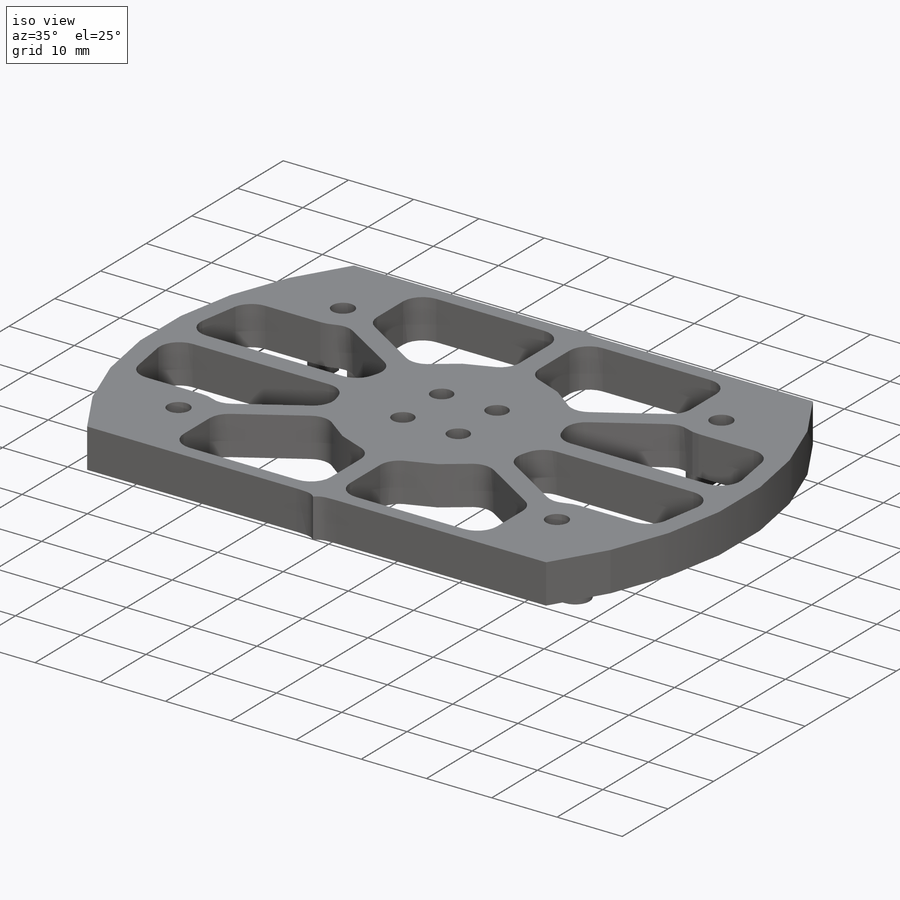
[diagram: iso view]
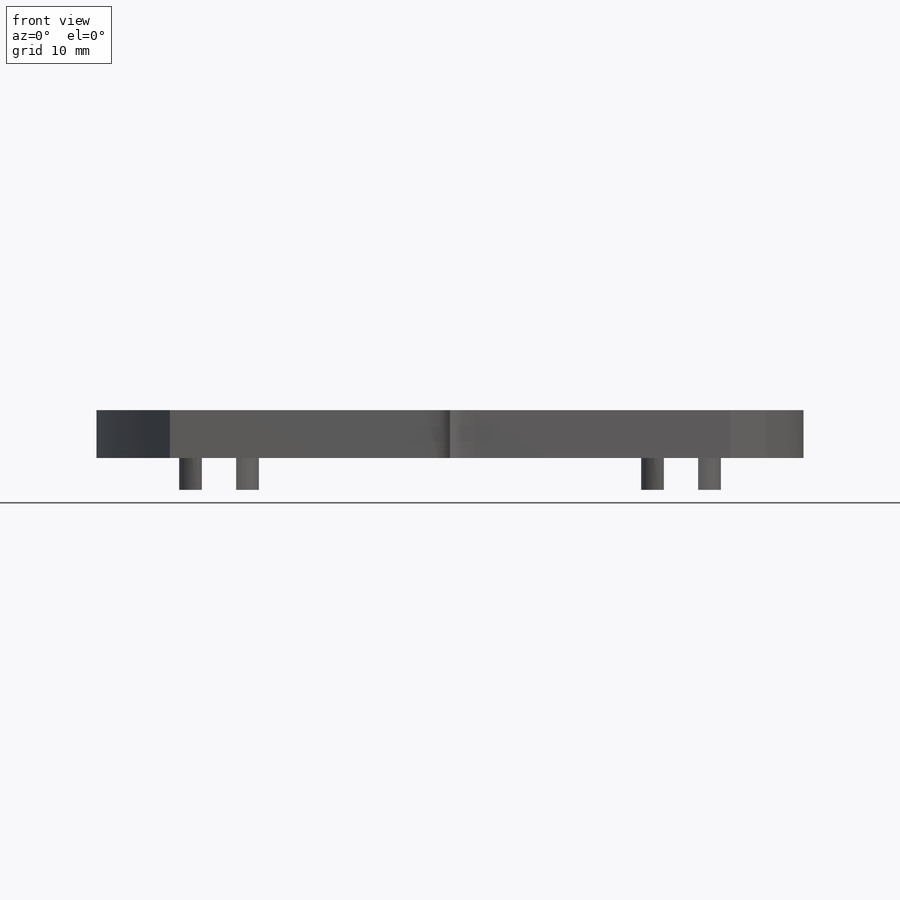
[diagram: front view]
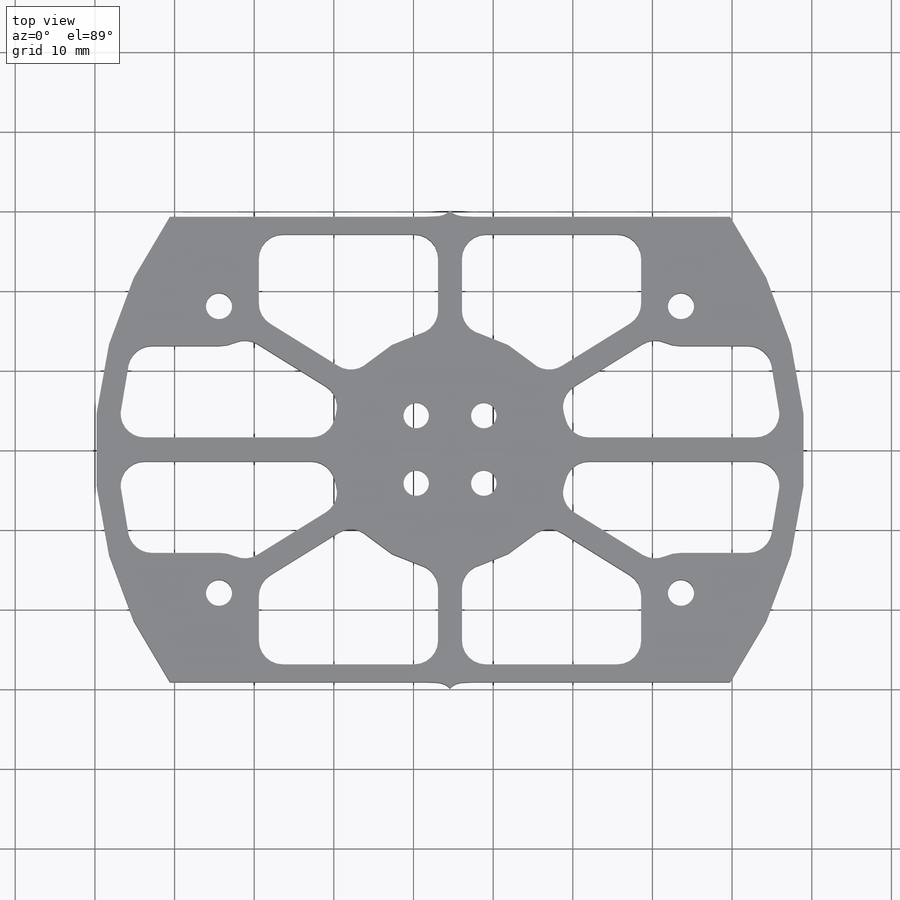
[diagram: top view]
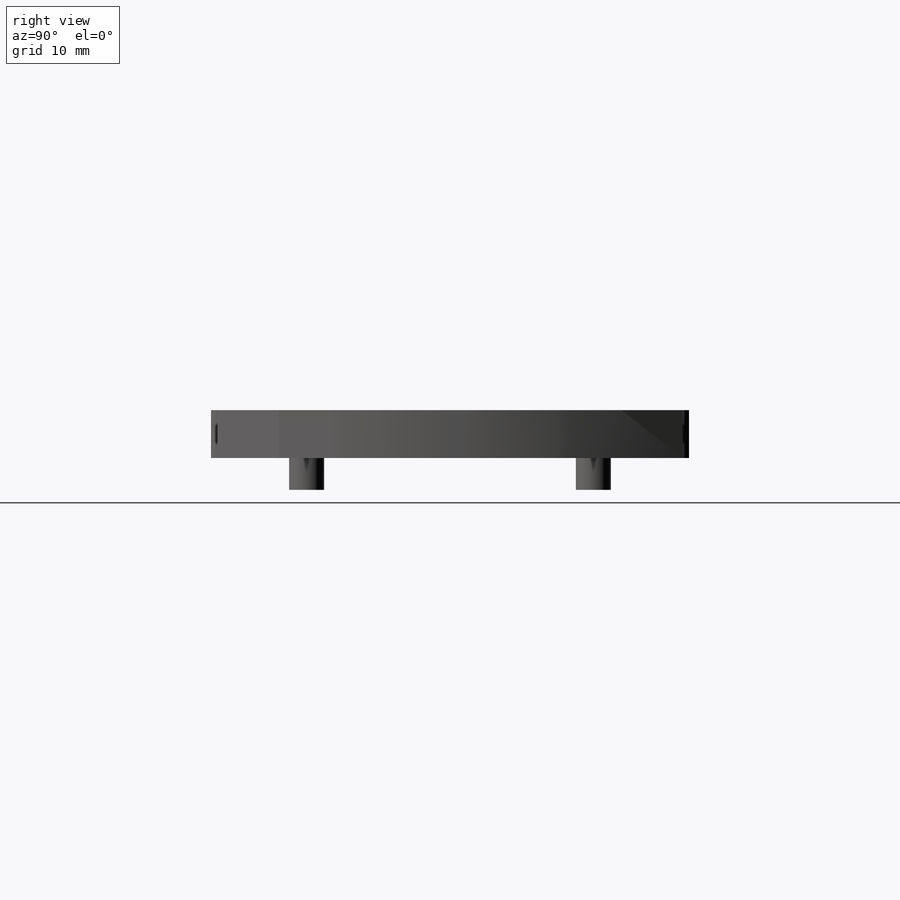
[diagram: right view]
SOLIDWORKS PART (.sldprt)
format: sldprt  version: not decoded by parser v0  size: 779,776 bytes
history: native  units: mm
features: sketch x16, thread x8, extrude x5, cut_extrude x3, hole x3, material x1, fillet x1 (+11 scaffold rows collapsed)
feature tree (48):
  scaffold x11  (default folders/planes/origin — collapsed)
  material  "3.1355 (EN-AW 2024)"
  sketch  "Эскиз1"  dims[D3=50.0mm D1=60.0mm D2=12.0mm D4=38.84mm D5=58.0mm]
  extrude  "Бобышка-Вытянуть1"  Depth=6mm
  sketch  "Эскиз2"  dims[D1=3.0mm]
  cut_extrude  "Вырез-Вытянуть1"  [1 undecoded]
  sketch  "Эскиз3"  dims[D1=10.0mm D2=10.0mm D3=30.0mm]
  extrude  "Бобышка-Вытянуть2"  [1 undecoded]
  sketch  "Эскиз4"  dims[D1=0.0mm D2=1.5mm D3=1.5mm D4=1.5mm D5=1.5mm]
  extrude  "Бобышка-Вытянуть3"  [1 undecoded]
  sketch  "Эскиз5"
  extrude  "Бобышка-Вытянуть4"  [1 undecoded]
  fillet  "Скругление1"  Radius=3mm
  sketch  "Эскиз8"  dims[D1=0.8mm]
  cut_extrude  "Вырез-Вытянуть2"  [1 undecoded]
  hole  "Отверстие обработанное метчиком M4x0.71"  [1 undecoded]
  sketch  "Эскиз7"
  sketch  "Эскиз6"  dims[hole-wizard template sketch: 60 standard entries collapsed; hole parameters kept: c18.Глубина проходного сверла=6.0mm]
  thread  "Отверстие резьбы1"  Diameter=4mm  [1 undecoded]
  thread  "Отверстие резьбы2"  Diameter=4mm  [1 undecoded]
  thread  "Отверстие резьбы3"  Diameter=4mm  [1 undecoded]
  thread  "Отверстие резьбы4"  Diameter=4mm  [1 undecoded]
  thread  "Отверстие резьбы6"  Diameter=4mm  [1 undecoded]
  thread  "Отверстие резьбы7"  Diameter=4mm  [1 undecoded]
  sketch  "Эскиз9"  dims[D2=2.2mm D1=4.4mm]
  extrude  "Бобышка-Вытянуть5"  Depth=4mm
  hole  "Отверстие обработанное метчиком M4x0.72"  [1 undecoded]
  sketch  "Эскиз11"
  sketch  "Эскиз10"  dims[hole-wizard template sketch: 61 standard entries collapsed; hole parameters above]
  thread  "Отверстие резьбы9"  Diameter=4mm  [1 undecoded]
  thread  "Отверстие резьбы10"  Diameter=4mm  [1 undecoded]
  sketch  "Эскиз12"  dims[D1=12.0mm D2=8.0]
  hole  "Цековка для винта с внутренним шестигранником M31"  [1 undecoded]
  sketch  "Эскиз14"
  sketch  "Эскиз13"  dims[hole-wizard template sketch: 41 standard entries collapsed; hole parameters kept: c12.Диаметр сквозного отверстия=3.2mm c12.Глубина сквозного отверстия=6.0mm c12.Диаметр цековки=6.5mm c12.Глубина цековки=3.0mm]
  sketch  "Эскиз15"  dims[D1=0.5mm]
  cut_extrude  "Вырез-Вытянуть3"  [1 undecoded]
  sketch  "Эскиз16"
decode coverage: 22 of 36 modeling features carry decoded parameters
note: ~ marks probable driven/reference dimensions
note: 17 parameter values undecoded
summary: no parameter record found for 9 features
note: suppression state not decoded; provenance and decode notes live in map.json
